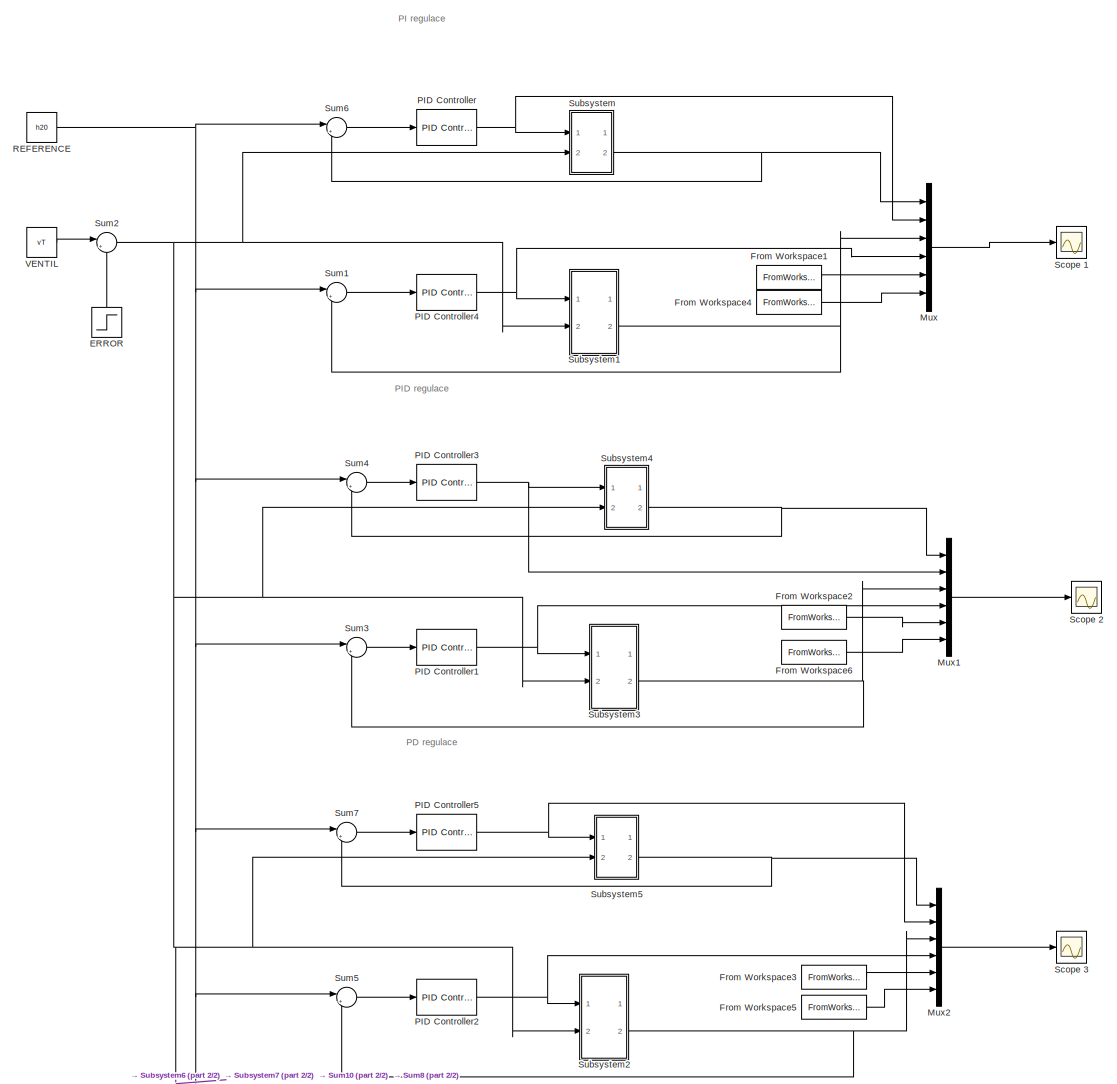
[diagram: root canvas - part 1/2, full width, middle band]
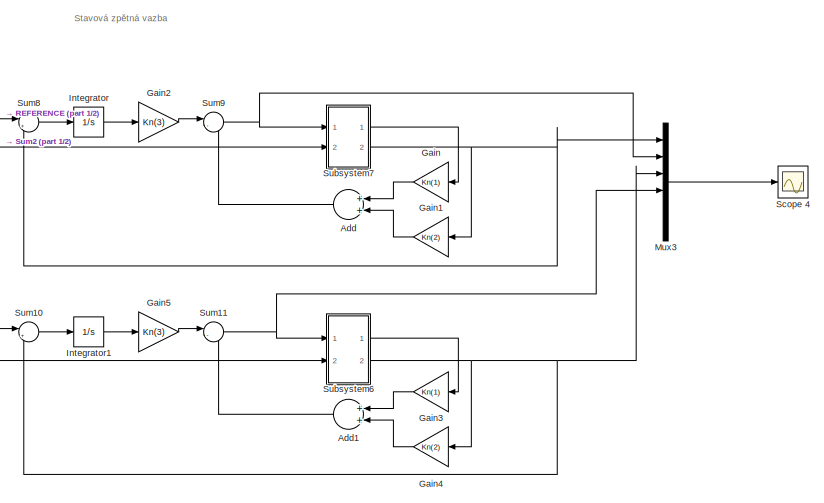
[diagram: root canvas - part 2/2, full width, bottom band]
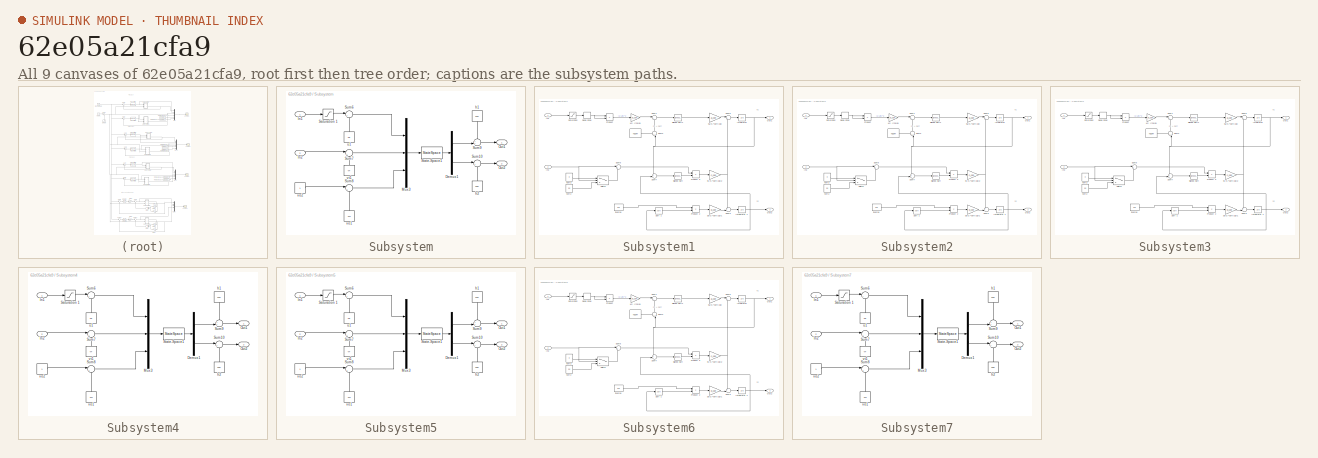
[diagram: thumbnail index - all 9 canvases of the model, root first then tree order]
MODEL slx_62e05a21cfa9
KIND model
CONFIG AbsTol = auto
CONFIG EnableMultiTasking = off
CONFIG FixedStep = auto
CONFIG MaxStep = auto
CONFIG MinStep = auto
CONFIG RelTol = 1e-3
CONFIG SampleTimeConstraint = Unconstrained
CONFIG Solver = VariableStepAuto
CONFIG SolverName = VariableStepAuto
CONFIG StartTime = 0.0
CONFIG StopTime = 250
BLOCK [Sum] Add
  InputSameDT = off
  OutDataTypeStr = Inherit: Inherit via internal rule
  Ports = [2, 1]
  SaturateOnIntegerOverflow = off
BLOCK [Sum] Add1
  InputSameDT = off
  OutDataTypeStr = Inherit: Inherit via internal rule
  Ports = [2, 1]
  SaturateOnIntegerOverflow = off
BLOCK [Step] ERROR
  After = 0.2
  SampleTime = 0
  Time = 150
  ZeroCross = off
BLOCK [FromWorkspace] From Workspace1
  SampleTime = 0
  VariableName = h2_real_PI
  ZeroCross = on
BLOCK [FromWorkspace] From Workspace2
  SampleTime = 0
  VariableName = h2_real_PID
  ZeroCross = on
BLOCK [FromWorkspace] From Workspace3
  SampleTime = 0
  VariableName = h2_real_PD
  ZeroCross = on
BLOCK [FromWorkspace] From Workspace4
  SampleTime = 0
  VariableName = u_real_PI
  ZeroCross = on
BLOCK [FromWorkspace] From Workspace5
  SampleTime = 0
  VariableName = u_real_PD
  ZeroCross = on
BLOCK [FromWorkspace] From Workspace6
  SampleTime = 0
  VariableName = u_real_PID
  ZeroCross = on
BLOCK [Gain] Gain
  Gain = Kn(1)
  OutDataTypeStr = Inherit: Inherit via internal rule
  ParamDataTypeStr = Inherit: Inherit via internal rule
  SaturateOnIntegerOverflow = off
BLOCK [Gain] Gain1
  Gain = Kn(2)
  OutDataTypeStr = Inherit: Inherit via internal rule
  ParamDataTypeStr = Inherit: Inherit via internal rule
  SaturateOnIntegerOverflow = off
BLOCK [Gain] Gain2
  Gain = Kn(3)
  OutDataTypeStr = Inherit: Inherit via internal rule
  ParamDataTypeStr = Inherit: Inherit via internal rule
  SaturateOnIntegerOverflow = off
BLOCK [Gain] Gain3
  Gain = Kn(1)
  OutDataTypeStr = Inherit: Inherit via internal rule
  ParamDataTypeStr = Inherit: Inherit via internal rule
  SaturateOnIntegerOverflow = off
BLOCK [Gain] Gain4
  Gain = Kn(2)
  OutDataTypeStr = Inherit: Inherit via internal rule
  ParamDataTypeStr = Inherit: Inherit via internal rule
  SaturateOnIntegerOverflow = off
BLOCK [Gain] Gain5
  Gain = Kn(3)
  OutDataTypeStr = Inherit: Inherit via internal rule
  ParamDataTypeStr = Inherit: Inherit via internal rule
  SaturateOnIntegerOverflow = off
BLOCK [Integrator] Integrator
  Ports = [1, 1]
BLOCK [Integrator] Integrator1
  Ports = [1, 1]
BLOCK [Mux] Mux
  DisplayOption = bar
  Inputs = 6
  Ports = [6, 1]
BLOCK [Mux] Mux1
  DisplayOption = bar
  Inputs = 6
  Ports = [6, 1]
BLOCK [Mux] Mux2
  DisplayOption = bar
  Inputs = 6
  Ports = [6, 1]
BLOCK [Mux] Mux3
  DisplayOption = bar
  Inputs = 6
  Ports = [6, 1]
BLOCK [Reference] PID Controller  REF=simulink/Continuous/PID Controller
  Ports = [1, 1]
  SourceBlock = simulink/Continuous/PID Controller
  SourceProductBaseCode = SL
  SourceProductName = Simulink
  SourceType = PID 1dof
BLOCK [Reference] PID Controller1  REF=simulink/Continuous/PID Controller
  Ports = [1, 1]
  SourceBlock = simulink/Continuous/PID Controller
  SourceProductBaseCode = SL
  SourceProductName = Simulink
  SourceType = PID 1dof
BLOCK [Reference] PID Controller2  REF=simulink/Continuous/PID Controller
  Ports = [1, 1]
  SourceBlock = simulink/Continuous/PID Controller
  SourceProductBaseCode = SL
  SourceProductName = Simulink
  SourceType = PID 1dof
BLOCK [Reference] PID Controller3  REF=simulink/Continuous/PID Controller
  Ports = [1, 1]
  SourceBlock = simulink/Continuous/PID Controller
  SourceProductBaseCode = SL
  SourceProductName = Simulink
  SourceType = PID 1dof
BLOCK [Reference] PID Controller4  REF=simulink/Continuous/PID Controller
  Ports = [1, 1]
  SourceBlock = simulink/Continuous/PID Controller
  SourceProductBaseCode = SL
  SourceProductName = Simulink
  SourceType = PID 1dof
BLOCK [Reference] PID Controller5  REF=simulink/Continuous/PID Controller
  Ports = [1, 1]
  SourceBlock = simulink/Continuous/PID Controller
  SourceProductBaseCode = SL
  SourceProductName = Simulink
  SourceType = PID 1dof
BLOCK [Constant] REFERENCE
  Value = h20
BLOCK [Scope] Scope 1
  NumInputPorts = 1
  Ports = [1]
  ScopeSpecificationString = Simulink.scopes.TimeScopeBlockCfg('CurrentConfiguration', extmgr.ConfigurationSet(extmgr.Configuration('Core','General UI',true),extmgr.Configuration('Core','Source UI',true),extmgr.Configuration('Sources','WiredSimulink',true,'DataLogging',true,'DataLoggingSaveFormat','Array','SampleTime','0.1222'),extmgr.Configuration('Visuals','Time Domain',true,'SerializedDisplays',{struct('MinYLimReal','-0.07...<+1562ch>
BLOCK [Scope] Scope 2
  NumInputPorts = 1
  Ports = [1]
  ScopeSpecificationString = Simulink.scopes.TimeScopeBlockCfg('CurrentConfiguration', extmgr.ConfigurationSet(extmgr.Configuration('Core','General UI',true),extmgr.Configuration('Core','Source UI',true),extmgr.Configuration('Sources','WiredSimulink',true,'DataLogging',true,'DataLoggingSaveFormat','Array','SampleTime','0.1222','DataLoggingVariableName','ScopeData1'),extmgr.Configuration('Visuals','Time Domain',true,'Serialize...<+1602ch>
BLOCK [Scope] Scope 3
  NumInputPorts = 1
  Ports = [1]
  ScopeSpecificationString = Simulink.scopes.TimeScopeBlockCfg('CurrentConfiguration', extmgr.ConfigurationSet(extmgr.Configuration('Core','General UI',true),extmgr.Configuration('Core','Source UI',true),extmgr.Configuration('Sources','WiredSimulink',true,'DataLogging',true,'DataLoggingSaveFormat','Array','SampleTime','0.1222','DataLoggingVariableName','ScopeData2'),extmgr.Configuration('Visuals','Time Domain',true,'Serialize...<+1579ch>
BLOCK [Scope] Scope 4
  NumInputPorts = 1
  Ports = [1]
  ScopeSpecificationString = Simulink.scopes.TimeScopeBlockCfg('CurrentConfiguration', extmgr.ConfigurationSet(extmgr.Configuration('Core','General UI',true),extmgr.Configuration('Core','Source UI',true),extmgr.Configuration('Sources','WiredSimulink',true,'DataLogging',true,'DataLoggingSaveFormat','Array','SampleTime','0.1222','DataLoggingVariableName','ScopeData3'),extmgr.Configuration('Visuals','Time Domain',true,'Serialize...<+1596ch>
BLOCK [SubSystem] Subsystem
  Ports = [2, 2]
  RequestExecContextInheritance = off
  Variant = off
BLOCK [Demux] Subsystem/Demux1
  DisplayOption = bar
  Outputs = 2
  Ports = [1, 2]
BLOCK [Inport] Subsystem/In1
  IconDisplay = Port number
BLOCK [Inport] Subsystem/In2
  IconDisplay = Port number
  Port = 2
BLOCK [Mux] Subsystem/Mux3
  DisplayOption = bar
  Inputs = 3
  Ports = [3, 1]
BLOCK [Outport] Subsystem/Out1
  IconDisplay = Port number
BLOCK [Outport] Subsystem/Out2
  IconDisplay = Port number
  Port = 2
BLOCK [Saturate] Subsystem/Saturation 1
  InputPortMap = u0
  Ports = [1, 1]
  UpperLimit = 1
BLOCK [StateSpace] Subsystem/State-Space1
  A = A
  B = B
  C = C
  D = D
  InitialCondition = 0
  Ports = [1, 1]
BLOCK [Sum] Subsystem/Sum10
  IconShape = round
  InputSameDT = off
  Inputs = |++
  OutDataTypeStr = Inherit: Inherit via internal rule
  Ports = [2, 1]
  SaturateOnIntegerOverflow = off
BLOCK [Sum] Subsystem/Sum6
  IconShape = round
  InputSameDT = off
  Inputs = |+-
  OutDataTypeStr = Inherit: Inherit via internal rule
  Ports = [2, 1]
  SaturateOnIntegerOverflow = off
BLOCK [Sum] Subsystem/Sum7
  IconShape = round
  InputSameDT = off
  Inputs = |+-
  OutDataTypeStr = Inherit: Inherit via internal rule
  Ports = [2, 1]
  SaturateOnIntegerOverflow = off
BLOCK [Sum] Subsystem/Sum8
  IconShape = round
  InputSameDT = off
  Inputs = |+-
  OutDataTypeStr = Inherit: Inherit via internal rule
  Ports = [2, 1]
  SaturateOnIntegerOverflow = off
BLOCK [Sum] Subsystem/Sum9
  IconShape = round
  InputSameDT = off
  Inputs = ++|
  OutDataTypeStr = Inherit: Inherit via internal rule
  Ports = [2, 1]
  SaturateOnIntegerOverflow = off
BLOCK [Constant] Subsystem/h1
  Value = h10
BLOCK [Constant] Subsystem/h2
  Value = h20
BLOCK [Constant] Subsystem/u1
  Value = u0
BLOCK [Constant] Subsystem/vo1
  Value = vO
BLOCK [Constant] Subsystem/vo2
BLOCK [Constant] Subsystem/vt1
  Value = vT
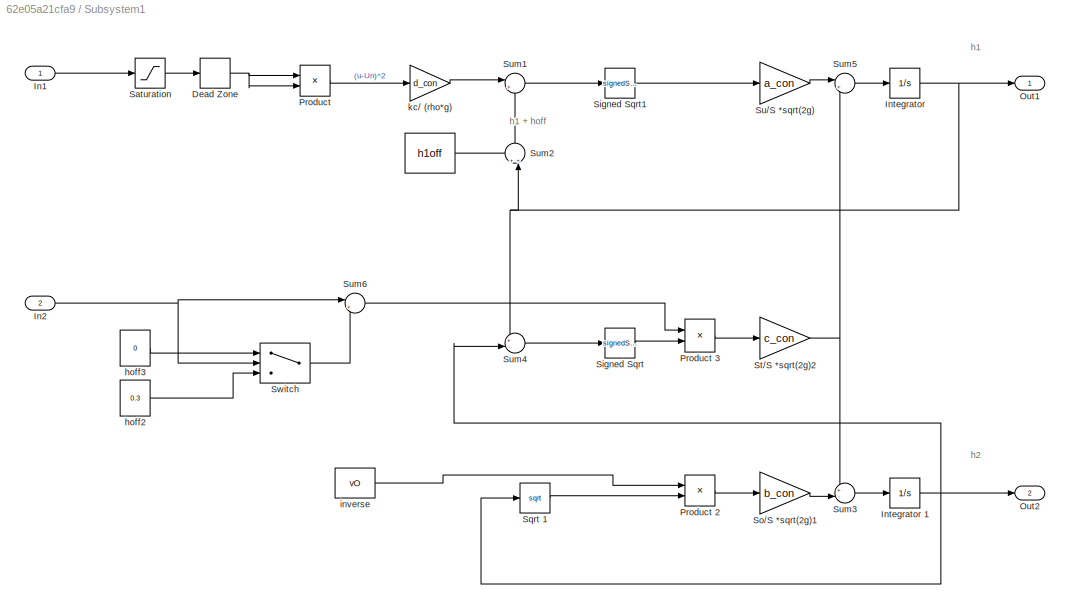
BLOCK [SubSystem] Subsystem1
  Ports = [2, 2]
  RequestExecContextInheritance = off
  Variant = off
BLOCK [Constant] Subsystem1/ 
  Value = h1off
BLOCK [Constant] Subsystem1/ hoff2
  Value = 0.3
BLOCK [Constant] Subsystem1/ hoff3
  Value = 0
BLOCK [Constant] Subsystem1/ inverse
  Value = vO
BLOCK [DeadZone] Subsystem1/Dead Zone 
  LowerValue = 0
  UpperValue = 0.05
BLOCK [Inport] Subsystem1/In1
  IconDisplay = Port number
BLOCK [Inport] Subsystem1/In2
  IconDisplay = Port number
  Port = 2
BLOCK [Integrator] Subsystem1/Integrator 
  InitialCondition = -0.045
  LimitOutput = on
  LowerSaturationLimit = -0.045
  Ports = [1, 1]
  UpperSaturationLimit = 0.71
BLOCK [Integrator] Subsystem1/Integrator 1
  LimitOutput = on
  LowerSaturationLimit = 0
  Ports = [1, 1]
  UpperSaturationLimit = 0.71
BLOCK [Outport] Subsystem1/Out1
  IconDisplay = Port number
BLOCK [Outport] Subsystem1/Out2
  IconDisplay = Port number
  Port = 2
BLOCK [Product] Subsystem1/Product 
  InputSameDT = off
  OutDataTypeStr = Inherit: Inherit via internal rule
  Ports = [2, 1]
  RndMeth = Floor
  SaturateOnIntegerOverflow = off
BLOCK [Product] Subsystem1/Product 2
  InputSameDT = off
  OutDataTypeStr = Inherit: Inherit via internal rule
  Ports = [2, 1]
  RndMeth = Floor
  SaturateOnIntegerOverflow = off
BLOCK [Product] Subsystem1/Product 3
  InputSameDT = off
  OutDataTypeStr = Inherit: Inherit via internal rule
  Ports = [2, 1]
  RndMeth = Floor
  SaturateOnIntegerOverflow = off
BLOCK [Saturate] Subsystem1/Saturation 
  InputPortMap = u0
  Ports = [1, 1]
  UpperLimit = 1
BLOCK [Sqrt] Subsystem1/Signed Sqrt
  Operator = signedSqrt
BLOCK [Sqrt] Subsystem1/Signed Sqrt1
  Operator = signedSqrt
BLOCK [Gain] Subsystem1/So//S *sqrt(2g)1
  Gain = b_con
  OutDataTypeStr = Inherit: Inherit via internal rule
  ParamDataTypeStr = Inherit: Inherit via internal rule
  SaturateOnIntegerOverflow = off
BLOCK [Sqrt] Subsystem1/Sqrt 1
BLOCK [Gain] Subsystem1/St//S *sqrt(2g)2
  Gain = c_con
  OutDataTypeStr = Inherit: Inherit via internal rule
  ParamDataTypeStr = Inherit: Inherit via internal rule
  SaturateOnIntegerOverflow = off
BLOCK [Gain] Subsystem1/Su//S *sqrt(2g)
  Gain = a_con
  OutDataTypeStr = Inherit: Inherit via internal rule
  ParamDataTypeStr = Inherit: Inherit via internal rule
  SaturateOnIntegerOverflow = off
BLOCK [Sum] Subsystem1/Sum1
  IconShape = round
  InputSameDT = off
  Inputs = |+-
  OutDataTypeStr = Inherit: Inherit via internal rule
  Ports = [2, 1]
  SaturateOnIntegerOverflow = off
BLOCK [Sum] Subsystem1/Sum2
  IconShape = round
  InputSameDT = off
  Inputs = ++|
  OutDataTypeStr = Inherit: Inherit via internal rule
  Ports = [2, 1]
  SaturateOnIntegerOverflow = off
BLOCK [Sum] Subsystem1/Sum3
  IconShape = round
  InputSameDT = off
  Inputs = +-|
  OutDataTypeStr = Inherit: Inherit via internal rule
  Ports = [2, 1]
  SaturateOnIntegerOverflow = off
BLOCK [Sum] Subsystem1/Sum4
  IconShape = round
  InputSameDT = off
  Inputs = +-|
  OutDataTypeStr = Inherit: Inherit via internal rule
  Ports = [2, 1]
  SaturateOnIntegerOverflow = off
BLOCK [Sum] Subsystem1/Sum5
  IconShape = round
  InputSameDT = off
  Inputs = |+-
  OutDataTypeStr = Inherit: Inherit via internal rule
  Ports = [2, 1]
  SaturateOnIntegerOverflow = off
BLOCK [Sum] Subsystem1/Sum6
  IconShape = round
  InputSameDT = off
  Inputs = |++
  OutDataTypeStr = Inherit: Inherit via internal rule
  Ports = [2, 1]
  SaturateOnIntegerOverflow = off
BLOCK [Switch] Subsystem1/Switch
  Criteria = u2 > Threshold
  InputSameDT = off
  SaturateOnIntegerOverflow = off
  Threshold = 0.5
BLOCK [Gain] Subsystem1/kc// (rho*g)
  Gain = d_con
  OutDataTypeStr = Inherit: Inherit via internal rule
  ParamDataTypeStr = Inherit: Inherit via internal rule
  SaturateOnIntegerOverflow = off
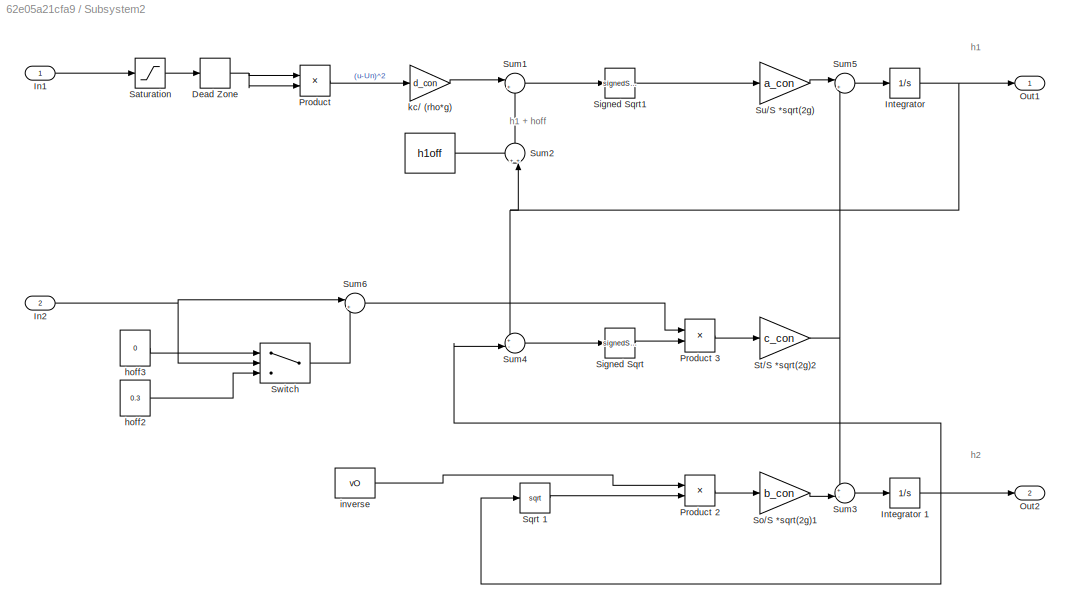
BLOCK [SubSystem] Subsystem2
  Ports = [2, 2]
  RequestExecContextInheritance = off
  Variant = off
BLOCK [Constant] Subsystem2/ 
  Value = h1off
BLOCK [Constant] Subsystem2/ hoff2
  Value = 0.3
BLOCK [Constant] Subsystem2/ hoff3
  Value = 0
BLOCK [Constant] Subsystem2/ inverse
  Value = vO
BLOCK [DeadZone] Subsystem2/Dead Zone 
  LowerValue = 0
  UpperValue = 0.05
BLOCK [Inport] Subsystem2/In1
  IconDisplay = Port number
BLOCK [Inport] Subsystem2/In2
  IconDisplay = Port number
  Port = 2
BLOCK [Integrator] Subsystem2/Integrator 
  InitialCondition = -0.045
  LimitOutput = on
  LowerSaturationLimit = -0.045
  Ports = [1, 1]
  UpperSaturationLimit = 0.71
BLOCK [Integrator] Subsystem2/Integrator 1
  LimitOutput = on
  LowerSaturationLimit = 0
  Ports = [1, 1]
  UpperSaturationLimit = 0.71
BLOCK [Outport] Subsystem2/Out1
  IconDisplay = Port number
BLOCK [Outport] Subsystem2/Out2
  IconDisplay = Port number
  Port = 2
BLOCK [Product] Subsystem2/Product 
  InputSameDT = off
  OutDataTypeStr = Inherit: Inherit via internal rule
  Ports = [2, 1]
  RndMeth = Floor
  SaturateOnIntegerOverflow = off
BLOCK [Product] Subsystem2/Product 2
  InputSameDT = off
  OutDataTypeStr = Inherit: Inherit via internal rule
  Ports = [2, 1]
  RndMeth = Floor
  SaturateOnIntegerOverflow = off
BLOCK [Product] Subsystem2/Product 3
  InputSameDT = off
  OutDataTypeStr = Inherit: Inherit via internal rule
  Ports = [2, 1]
  RndMeth = Floor
  SaturateOnIntegerOverflow = off
BLOCK [Saturate] Subsystem2/Saturation 
  InputPortMap = u0
  Ports = [1, 1]
  UpperLimit = 1
BLOCK [Sqrt] Subsystem2/Signed Sqrt
  Operator = signedSqrt
BLOCK [Sqrt] Subsystem2/Signed Sqrt1
  Operator = signedSqrt
BLOCK [Gain] Subsystem2/So//S *sqrt(2g)1
  Gain = b_con
  OutDataTypeStr = Inherit: Inherit via internal rule
  ParamDataTypeStr = Inherit: Inherit via internal rule
  SaturateOnIntegerOverflow = off
BLOCK [Sqrt] Subsystem2/Sqrt 1
BLOCK [Gain] Subsystem2/St//S *sqrt(2g)2
  Gain = c_con
  OutDataTypeStr = Inherit: Inherit via internal rule
  ParamDataTypeStr = Inherit: Inherit via internal rule
  SaturateOnIntegerOverflow = off
BLOCK [Gain] Subsystem2/Su//S *sqrt(2g)
  Gain = a_con
  OutDataTypeStr = Inherit: Inherit via internal rule
  ParamDataTypeStr = Inherit: Inherit via internal rule
  SaturateOnIntegerOverflow = off
BLOCK [Sum] Subsystem2/Sum1
  IconShape = round
  InputSameDT = off
  Inputs = |+-
  OutDataTypeStr = Inherit: Inherit via internal rule
  Ports = [2, 1]
  SaturateOnIntegerOverflow = off
BLOCK [Sum] Subsystem2/Sum2
  IconShape = round
  InputSameDT = off
  Inputs = ++|
  OutDataTypeStr = Inherit: Inherit via internal rule
  Ports = [2, 1]
  SaturateOnIntegerOverflow = off
BLOCK [Sum] Subsystem2/Sum3
  IconShape = round
  InputSameDT = off
  Inputs = +-|
  OutDataTypeStr = Inherit: Inherit via internal rule
  Ports = [2, 1]
  SaturateOnIntegerOverflow = off
BLOCK [Sum] Subsystem2/Sum4
  IconShape = round
  InputSameDT = off
  Inputs = +-|
  OutDataTypeStr = Inherit: Inherit via internal rule
  Ports = [2, 1]
  SaturateOnIntegerOverflow = off
BLOCK [Sum] Subsystem2/Sum5
  IconShape = round
  InputSameDT = off
  Inputs = |+-
  OutDataTypeStr = Inherit: Inherit via internal rule
  Ports = [2, 1]
  SaturateOnIntegerOverflow = off
BLOCK [Sum] Subsystem2/Sum6
  IconShape = round
  InputSameDT = off
  Inputs = |++
  OutDataTypeStr = Inherit: Inherit via internal rule
  Ports = [2, 1]
  SaturateOnIntegerOverflow = off
BLOCK [Switch] Subsystem2/Switch
  Criteria = u2 > Threshold
  InputSameDT = off
  SaturateOnIntegerOverflow = off
  Threshold = 0.5
BLOCK [Gain] Subsystem2/kc// (rho*g)
  Gain = d_con
  OutDataTypeStr = Inherit: Inherit via internal rule
  ParamDataTypeStr = Inherit: Inherit via internal rule
  SaturateOnIntegerOverflow = off
BLOCK [SubSystem] Subsystem3
  Ports = [2, 2]
  RequestExecContextInheritance = off
  Variant = off
BLOCK [Constant] Subsystem3/ 
  Value = h1off
BLOCK [Constant] Subsystem3/ hoff2
  Value = 0.3
BLOCK [Constant] Subsystem3/ hoff3
  Value = 0
BLOCK [Constant] Subsystem3/ inverse
  Value = vO
BLOCK [DeadZone] Subsystem3/Dead Zone 
  LowerValue = 0
  UpperValue = 0.05
BLOCK [Inport] Subsystem3/In1
  IconDisplay = Port number
BLOCK [Inport] Subsystem3/In2
  IconDisplay = Port number
  Port = 2
BLOCK [Integrator] Subsystem3/Integrator 
  InitialCondition = -0.045
  LimitOutput = on
  LowerSaturationLimit = -0.045
  Ports = [1, 1]
  UpperSaturationLimit = 0.71
BLOCK [Integrator] Subsystem3/Integrator 1
  LimitOutput = on
  LowerSaturationLimit = 0
  Ports = [1, 1]
  UpperSaturationLimit = 0.71
BLOCK [Outport] Subsystem3/Out1
  IconDisplay = Port number
BLOCK [Outport] Subsystem3/Out2
  IconDisplay = Port number
  Port = 2
BLOCK [Product] Subsystem3/Product 
  InputSameDT = off
  OutDataTypeStr = Inherit: Inherit via internal rule
  Ports = [2, 1]
  RndMeth = Floor
  SaturateOnIntegerOverflow = off
BLOCK [Product] Subsystem3/Product 2
  InputSameDT = off
  OutDataTypeStr = Inherit: Inherit via internal rule
  Ports = [2, 1]
  RndMeth = Floor
  SaturateOnIntegerOverflow = off
BLOCK [Product] Subsystem3/Product 3
  InputSameDT = off
  OutDataTypeStr = Inherit: Inherit via internal rule
  Ports = [2, 1]
  RndMeth = Floor
  SaturateOnIntegerOverflow = off
BLOCK [Saturate] Subsystem3/Saturation 
  InputPortMap = u0
  Ports = [1, 1]
  UpperLimit = 1
BLOCK [Sqrt] Subsystem3/Signed Sqrt
  Operator = signedSqrt
BLOCK [Sqrt] Subsystem3/Signed Sqrt1
  Operator = signedSqrt
BLOCK [Gain] Subsystem3/So//S *sqrt(2g)1
  Gain = b_con
  OutDataTypeStr = Inherit: Inherit via internal rule
  ParamDataTypeStr = Inherit: Inherit via internal rule
  SaturateOnIntegerOverflow = off
BLOCK [Sqrt] Subsystem3/Sqrt 1
BLOCK [Gain] Subsystem3/St//S *sqrt(2g)2
  Gain = c_con
  OutDataTypeStr = Inherit: Inherit via internal rule
  ParamDataTypeStr = Inherit: Inherit via internal rule
  SaturateOnIntegerOverflow = off
BLOCK [Gain] Subsystem3/Su//S *sqrt(2g)
  Gain = a_con
  OutDataTypeStr = Inherit: Inherit via internal rule
  ParamDataTypeStr = Inherit: Inherit via internal rule
  SaturateOnIntegerOverflow = off
BLOCK [Sum] Subsystem3/Sum1
  IconShape = round
  InputSameDT = off
  Inputs = |+-
  OutDataTypeStr = Inherit: Inherit via internal rule
  Ports = [2, 1]
  SaturateOnIntegerOverflow = off
BLOCK [Sum] Subsystem3/Sum2
  IconShape = round
  InputSameDT = off
  Inputs = ++|
  OutDataTypeStr = Inherit: Inherit via internal rule
  Ports = [2, 1]
  SaturateOnIntegerOverflow = off
BLOCK [Sum] Subsystem3/Sum3
  IconShape = round
  InputSameDT = off
  Inputs = +-|
  OutDataTypeStr = Inherit: Inherit via internal rule
  Ports = [2, 1]
  SaturateOnIntegerOverflow = off
BLOCK [Sum] Subsystem3/Sum4
  IconShape = round
  InputSameDT = off
  Inputs = +-|
  OutDataTypeStr = Inherit: Inherit via internal rule
  Ports = [2, 1]
  SaturateOnIntegerOverflow = off
BLOCK [Sum] Subsystem3/Sum5
  IconShape = round
  InputSameDT = off
  Inputs = |+-
  OutDataTypeStr = Inherit: Inherit via internal rule
  Ports = [2, 1]
  SaturateOnIntegerOverflow = off
BLOCK [Sum] Subsystem3/Sum6
  IconShape = round
  InputSameDT = off
  Inputs = |++
  OutDataTypeStr = Inherit: Inherit via internal rule
  Ports = [2, 1]
  SaturateOnIntegerOverflow = off
BLOCK [Switch] Subsystem3/Switch
  Criteria = u2 > Threshold
  InputSameDT = off
  SaturateOnIntegerOverflow = off
  Threshold = 0.5
BLOCK [Gain] Subsystem3/kc// (rho*g)
  Gain = d_con
  OutDataTypeStr = Inherit: Inherit via internal rule
  ParamDataTypeStr = Inherit: Inherit via internal rule
  SaturateOnIntegerOverflow = off
BLOCK [SubSystem] Subsystem4
  Ports = [2, 2]
  RequestExecContextInheritance = off
  Variant = off
BLOCK [Demux] Subsystem4/Demux1
  DisplayOption = bar
  Outputs = 2
  Ports = [1, 2]
BLOCK [Inport] Subsystem4/In1
  IconDisplay = Port number
BLOCK [Inport] Subsystem4/In2
  IconDisplay = Port number
  Port = 2
BLOCK [Mux] Subsystem4/Mux3
  DisplayOption = bar
  Inputs = 3
  Ports = [3, 1]
BLOCK [Outport] Subsystem4/Out1
  IconDisplay = Port number
BLOCK [Outport] Subsystem4/Out2
  IconDisplay = Port number
  Port = 2
BLOCK [Saturate] Subsystem4/Saturation 1
  InputPortMap = u0
  Ports = [1, 1]
  UpperLimit = 1
BLOCK [StateSpace] Subsystem4/State-Space1
  A = A
  B = B
  C = C
  D = D
  InitialCondition = 0
  Ports = [1, 1]
BLOCK [Sum] Subsystem4/Sum10
  IconShape = round
  InputSameDT = off
  Inputs = |++
  OutDataTypeStr = Inherit: Inherit via internal rule
  Ports = [2, 1]
  SaturateOnIntegerOverflow = off
BLOCK [Sum] Subsystem4/Sum6
  IconShape = round
  InputSameDT = off
  Inputs = |+-
  OutDataTypeStr = Inherit: Inherit via internal rule
  Ports = [2, 1]
  SaturateOnIntegerOverflow = off
BLOCK [Sum] Subsystem4/Sum7
  IconShape = round
  InputSameDT = off
  Inputs = |+-
  OutDataTypeStr = Inherit: Inherit via internal rule
  Ports = [2, 1]
  SaturateOnIntegerOverflow = off
BLOCK [Sum] Subsystem4/Sum8
  IconShape = round
  InputSameDT = off
  Inputs = |+-
  OutDataTypeStr = Inherit: Inherit via internal rule
  Ports = [2, 1]
  SaturateOnIntegerOverflow = off
BLOCK [Sum] Subsystem4/Sum9
  IconShape = round
  InputSameDT = off
  Inputs = ++|
  OutDataTypeStr = Inherit: Inherit via internal rule
  Ports = [2, 1]
  SaturateOnIntegerOverflow = off
BLOCK [Constant] Subsystem4/h1
  Value = h10
BLOCK [Constant] Subsystem4/h2
  Value = h20
BLOCK [Constant] Subsystem4/u1
  Value = u0
BLOCK [Constant] Subsystem4/vo1
  Value = vO
BLOCK [Constant] Subsystem4/vo2
BLOCK [Constant] Subsystem4/vt1
  Value = vT
BLOCK [SubSystem] Subsystem5
  Ports = [2, 2]
  RequestExecContextInheritance = off
  Variant = off
BLOCK [Demux] Subsystem5/Demux1
  DisplayOption = bar
  Outputs = 2
  Ports = [1, 2]
BLOCK [Inport] Subsystem5/In1
  IconDisplay = Port number
BLOCK [Inport] Subsystem5/In2
  IconDisplay = Port number
  Port = 2
BLOCK [Mux] Subsystem5/Mux3
  DisplayOption = bar
  Inputs = 3
  Ports = [3, 1]
BLOCK [Outport] Subsystem5/Out1
  IconDisplay = Port number
BLOCK [Outport] Subsystem5/Out2
  IconDisplay = Port number
  Port = 2
BLOCK [Saturate] Subsystem5/Saturation 1
  InputPortMap = u0
  Ports = [1, 1]
  UpperLimit = 1
BLOCK [StateSpace] Subsystem5/State-Space1
  A = A
  B = B
  C = C
  D = D
  InitialCondition = 0
  Ports = [1, 1]
BLOCK [Sum] Subsystem5/Sum10
  IconShape = round
  InputSameDT = off
  Inputs = |++
  OutDataTypeStr = Inherit: Inherit via internal rule
  Ports = [2, 1]
  SaturateOnIntegerOverflow = off
BLOCK [Sum] Subsystem5/Sum6
  IconShape = round
  InputSameDT = off
  Inputs = |+-
  OutDataTypeStr = Inherit: Inherit via internal rule
  Ports = [2, 1]
  SaturateOnIntegerOverflow = off
BLOCK [Sum] Subsystem5/Sum7
  IconShape = round
  InputSameDT = off
  Inputs = |+-
  OutDataTypeStr = Inherit: Inherit via internal rule
  Ports = [2, 1]
  SaturateOnIntegerOverflow = off
BLOCK [Sum] Subsystem5/Sum8
  IconShape = round
  InputSameDT = off
  Inputs = |+-
  OutDataTypeStr = Inherit: Inherit via internal rule
  Ports = [2, 1]
  SaturateOnIntegerOverflow = off
BLOCK [Sum] Subsystem5/Sum9
  IconShape = round
  InputSameDT = off
  Inputs = ++|
  OutDataTypeStr = Inherit: Inherit via internal rule
  Ports = [2, 1]
  SaturateOnIntegerOverflow = off
BLOCK [Constant] Subsystem5/h1
  Value = h10
BLOCK [Constant] Subsystem5/h2
  Value = h20
BLOCK [Constant] Subsystem5/u1
  Value = u0
BLOCK [Constant] Subsystem5/vo1
  Value = vO
BLOCK [Constant] Subsystem5/vo2
BLOCK [Constant] Subsystem5/vt1
  Value = vT
BLOCK [SubSystem] Subsystem6
  Ports = [2, 2]
  RequestExecContextInheritance = off
  Variant = off
BLOCK [Constant] Subsystem6/ 
  Value = h1off
BLOCK [Constant] Subsystem6/ hoff2
  Value = 0.3
BLOCK [Constant] Subsystem6/ hoff3
  Value = 0
BLOCK [Constant] Subsystem6/ inverse
  Value = vO
BLOCK [DeadZone] Subsystem6/Dead Zone 
  LowerValue = 0
  UpperValue = 0.05
BLOCK [Inport] Subsystem6/In1
  IconDisplay = Port number
BLOCK [Inport] Subsystem6/In2
  IconDisplay = Port number
  Port = 2
BLOCK [Integrator] Subsystem6/Integrator 
  InitialCondition = -0.045
  LimitOutput = on
  LowerSaturationLimit = -0.045
  Ports = [1, 1]
  UpperSaturationLimit = 0.71
BLOCK [Integrator] Subsystem6/Integrator 1
  LimitOutput = on
  LowerSaturationLimit = 0
  Ports = [1, 1]
  UpperSaturationLimit = 0.71
BLOCK [Outport] Subsystem6/Out1
  IconDisplay = Port number
BLOCK [Outport] Subsystem6/Out2
  IconDisplay = Port number
  Port = 2
BLOCK [Product] Subsystem6/Product 
  InputSameDT = off
  OutDataTypeStr = Inherit: Inherit via internal rule
  Ports = [2, 1]
  RndMeth = Floor
  SaturateOnIntegerOverflow = off
BLOCK [Product] Subsystem6/Product 2
  InputSameDT = off
  OutDataTypeStr = Inherit: Inherit via internal rule
  Ports = [2, 1]
  RndMeth = Floor
  SaturateOnIntegerOverflow = off
BLOCK [Product] Subsystem6/Product 3
  InputSameDT = off
  OutDataTypeStr = Inherit: Inherit via internal rule
  Ports = [2, 1]
  RndMeth = Floor
  SaturateOnIntegerOverflow = off
BLOCK [Saturate] Subsystem6/Saturation 
  InputPortMap = u0
  Ports = [1, 1]
  UpperLimit = 1
BLOCK [Sqrt] Subsystem6/Signed Sqrt
  Operator = signedSqrt
BLOCK [Sqrt] Subsystem6/Signed Sqrt1
  Operator = signedSqrt
BLOCK [Gain] Subsystem6/So//S *sqrt(2g)1
  Gain = b_con
  OutDataTypeStr = Inherit: Inherit via internal rule
  ParamDataTypeStr = Inherit: Inherit via internal rule
  SaturateOnIntegerOverflow = off
BLOCK [Sqrt] Subsystem6/Sqrt 1
BLOCK [Gain] Subsystem6/St//S *sqrt(2g)2
  Gain = c_con
  OutDataTypeStr = Inherit: Inherit via internal rule
  ParamDataTypeStr = Inherit: Inherit via internal rule
  SaturateOnIntegerOverflow = off
BLOCK [Gain] Subsystem6/Su//S *sqrt(2g)
  Gain = a_con
  OutDataTypeStr = Inherit: Inherit via internal rule
  ParamDataTypeStr = Inherit: Inherit via internal rule
  SaturateOnIntegerOverflow = off
BLOCK [Sum] Subsystem6/Sum1
  IconShape = round
  InputSameDT = off
  Inputs = |+-
  OutDataTypeStr = Inherit: Inherit via internal rule
  Ports = [2, 1]
  SaturateOnIntegerOverflow = off
BLOCK [Sum] Subsystem6/Sum2
  IconShape = round
  InputSameDT = off
  Inputs = ++|
  OutDataTypeStr = Inherit: Inherit via internal rule
  Ports = [2, 1]
  SaturateOnIntegerOverflow = off
BLOCK [Sum] Subsystem6/Sum3
  IconShape = round
  InputSameDT = off
  Inputs = +-|
  OutDataTypeStr = Inherit: Inherit via internal rule
  Ports = [2, 1]
  SaturateOnIntegerOverflow = off
BLOCK [Sum] Subsystem6/Sum4
  IconShape = round
  InputSameDT = off
  Inputs = +-|
  OutDataTypeStr = Inherit: Inherit via internal rule
  Ports = [2, 1]
  SaturateOnIntegerOverflow = off
BLOCK [Sum] Subsystem6/Sum5
  IconShape = round
  InputSameDT = off
  Inputs = |+-
  OutDataTypeStr = Inherit: Inherit via internal rule
  Ports = [2, 1]
  SaturateOnIntegerOverflow = off
BLOCK [Sum] Subsystem6/Sum6
  IconShape = round
  InputSameDT = off
  Inputs = |++
  OutDataTypeStr = Inherit: Inherit via internal rule
  Ports = [2, 1]
  SaturateOnIntegerOverflow = off
BLOCK [Switch] Subsystem6/Switch
  Criteria = u2 > Threshold
  InputSameDT = off
  SaturateOnIntegerOverflow = off
  Threshold = 0.5
BLOCK [Gain] Subsystem6/kc// (rho*g)
  Gain = d_con
  OutDataTypeStr = Inherit: Inherit via internal rule
  ParamDataTypeStr = Inherit: Inherit via internal rule
  SaturateOnIntegerOverflow = off
BLOCK [SubSystem] Subsystem7
  Ports = [2, 2]
  RequestExecContextInheritance = off
  Variant = off
BLOCK [Demux] Subsystem7/Demux1
  DisplayOption = bar
  Outputs = 2
  Ports = [1, 2]
BLOCK [Inport] Subsystem7/In1
  IconDisplay = Port number
BLOCK [Inport] Subsystem7/In2
  IconDisplay = Port number
  Port = 2
BLOCK [Mux] Subsystem7/Mux3
  DisplayOption = bar
  Inputs = 3
  Ports = [3, 1]
BLOCK [Outport] Subsystem7/Out1
  IconDisplay = Port number
BLOCK [Outport] Subsystem7/Out2
  IconDisplay = Port number
  Port = 2
BLOCK [Saturate] Subsystem7/Saturation 1
  InputPortMap = u0
  Ports = [1, 1]
  UpperLimit = 1
BLOCK [StateSpace] Subsystem7/State-Space1
  A = A
  B = B
  C = [1 0; 0 1]
  D = D
  InitialCondition = 0
  Ports = [1, 1]
BLOCK [Sum] Subsystem7/Sum10
  IconShape = round
  InputSameDT = off
  Inputs = |++
  OutDataTypeStr = Inherit: Inherit via internal rule
  Ports = [2, 1]
  SaturateOnIntegerOverflow = off
BLOCK [Sum] Subsystem7/Sum6
  IconShape = round
  InputSameDT = off
  Inputs = |+-
  OutDataTypeStr = Inherit: Inherit via internal rule
  Ports = [2, 1]
  SaturateOnIntegerOverflow = off
BLOCK [Sum] Subsystem7/Sum7
  IconShape = round
  InputSameDT = off
  Inputs = |+-
  OutDataTypeStr = Inherit: Inherit via internal rule
  Ports = [2, 1]
  SaturateOnIntegerOverflow = off
BLOCK [Sum] Subsystem7/Sum8
  IconShape = round
  InputSameDT = off
  Inputs = |+-
  OutDataTypeStr = Inherit: Inherit via internal rule
  Ports = [2, 1]
  SaturateOnIntegerOverflow = off
BLOCK [Sum] Subsystem7/Sum9
  IconShape = round
  InputSameDT = off
  Inputs = ++|
  OutDataTypeStr = Inherit: Inherit via internal rule
  Ports = [2, 1]
  SaturateOnIntegerOverflow = off
BLOCK [Constant] Subsystem7/h1
  Value = h10
BLOCK [Constant] Subsystem7/h2
  Value = h20
BLOCK [Constant] Subsystem7/u1
  Value = u0
BLOCK [Constant] Subsystem7/vo1
  Value = vO
BLOCK [Constant] Subsystem7/vo2
BLOCK [Constant] Subsystem7/vt1
  Value = vT
BLOCK [Sum] Sum1
  IconShape = round
  InputSameDT = off
  Inputs = |+-
  OutDataTypeStr = Inherit: Inherit via internal rule
  Ports = [2, 1]
  SaturateOnIntegerOverflow = off
BLOCK [Sum] Sum10
  IconShape = round
  InputSameDT = off
  Inputs = |+-
  OutDataTypeStr = Inherit: Inherit via internal rule
  Ports = [2, 1]
  SaturateOnIntegerOverflow = off
BLOCK [Sum] Sum11
  IconShape = round
  InputSameDT = off
  Inputs = |--
  OutDataTypeStr = Inherit: Inherit via internal rule
  Ports = [2, 1]
  SaturateOnIntegerOverflow = off
BLOCK [Sum] Sum2
  IconShape = round
  InputSameDT = off
  Inputs = |+-
  OutDataTypeStr = Inherit: Inherit via internal rule
  Ports = [2, 1]
  SaturateOnIntegerOverflow = off
BLOCK [Sum] Sum3
  IconShape = round
  InputSameDT = off
  Inputs = |+-
  OutDataTypeStr = Inherit: Inherit via internal rule
  Ports = [2, 1]
  SaturateOnIntegerOverflow = off
BLOCK [Sum] Sum4
  IconShape = round
  InputSameDT = off
  Inputs = |+-
  OutDataTypeStr = Inherit: Inherit via internal rule
  Ports = [2, 1]
  SaturateOnIntegerOverflow = off
BLOCK [Sum] Sum5
  IconShape = round
  InputSameDT = off
  Inputs = |+-
  OutDataTypeStr = Inherit: Inherit via internal rule
  Ports = [2, 1]
  SaturateOnIntegerOverflow = off
BLOCK [Sum] Sum6
  IconShape = round
  InputSameDT = off
  Inputs = |+-
  OutDataTypeStr = Inherit: Inherit via internal rule
  Ports = [2, 1]
  SaturateOnIntegerOverflow = off
BLOCK [Sum] Sum7
  IconShape = round
  InputSameDT = off
  Inputs = |+-
  OutDataTypeStr = Inherit: Inherit via internal rule
  Ports = [2, 1]
  SaturateOnIntegerOverflow = off
BLOCK [Sum] Sum8
  IconShape = round
  InputSameDT = off
  Inputs = |+-
  OutDataTypeStr = Inherit: Inherit via internal rule
  Ports = [2, 1]
  SaturateOnIntegerOverflow = off
BLOCK [Sum] Sum9
  IconShape = round
  InputSameDT = off
  Inputs = |--
  OutDataTypeStr = Inherit: Inherit via internal rule
  Ports = [2, 1]
  SaturateOnIntegerOverflow = off
BLOCK [Constant] VENTIL 
  Value = vT
ANNOTATION (root): PD regulace
ANNOTATION (root): PI regulace
ANNOTATION (root): PID regulace
ANNOTATION (root): Stavová zpětná vazba
ANNOTATION Subsystem1: h1
ANNOTATION Subsystem1: h1 + hoff
ANNOTATION Subsystem1: h2
ANNOTATION Subsystem2: h1
ANNOTATION Subsystem2: h1 + hoff
ANNOTATION Subsystem2: h2
ANNOTATION Subsystem3: h1
ANNOTATION Subsystem3: h1 + hoff
ANNOTATION Subsystem3: h2
ANNOTATION Subsystem6: h1
ANNOTATION Subsystem6: h1 + hoff
ANNOTATION Subsystem6: h2
LINE Add1:1 -> Sum11:2
LINE Add:1 -> Sum9:2
LINE ERROR:1 -> Sum2:2
LINE From Workspace1:1 -> Mux:5
LINE From Workspace2:1 -> Mux1:5
LINE From Workspace3:1 -> Mux2:5
LINE From Workspace4:1 -> Mux:6
LINE From Workspace5:1 -> Mux2:6
LINE From Workspace6:1 -> Mux1:6
LINE Gain1:1 -> Add:2
LINE Gain2:1 -> Sum9:1
LINE Gain3:1 -> Add1:1
LINE Gain4:1 -> Add1:2
LINE Gain5:1 -> Sum11:1
LINE Gain:1 -> Add:1
LINE Integrator1:1 -> Gain5:1
LINE Integrator:1 -> Gain2:1
LINE Mux1:1 -> Scope 2:1
LINE Mux2:1 -> Scope 3:1
LINE Mux3:1 -> Scope 4:1
LINE Mux:1 -> Scope 1:1
NET PID Controller1:1 -> Mux1:4, Subsystem3:1
NET PID Controller2:1 -> Mux2:4, Subsystem2:1
NET PID Controller3:1 -> Mux1:2, Subsystem4:1
NET PID Controller4:1 -> Mux:4, Subsystem1:1
NET PID Controller5:1 -> Mux2:2, Subsystem5:1
NET PID Controller:1 -> Mux:2, Subsystem:1
NET REFERENCE:1 -> Sum10:1, Sum1:1, Sum3:1, Sum4:1, Sum5:1, Sum6:1, Sum7:1, Sum8:1
LINE Subsystem/Demux1:1 -> Subsystem/Sum9:2
LINE Subsystem/Demux1:2 -> Subsystem/Sum10:1
LINE Subsystem/In1:1 -> Subsystem/Saturation 1:1
LINE Subsystem/In2:1 -> Subsystem/Sum7:1
LINE Subsystem/Mux3:1 -> Subsystem/State-Space1:1
LINE Subsystem/Saturation 1:1 -> Subsystem/Sum6:1
LINE Subsystem/State-Space1:1 -> Subsystem/Demux1:1
LINE Subsystem/Sum10:1 -> Subsystem/Out2:1
LINE Subsystem/Sum6:1 -> Subsystem/Mux3:1
LINE Subsystem/Sum7:1 -> Subsystem/Mux3:2
LINE Subsystem/Sum8:1 -> Subsystem/Mux3:3
LINE Subsystem/Sum9:1 -> Subsystem/Out1:1
LINE Subsystem/h1:1 -> Subsystem/Sum9:1
LINE Subsystem/h2:1 -> Subsystem/Sum10:2
LINE Subsystem/u1:1 -> Subsystem/Sum6:2
LINE Subsystem/vo1:1 -> Subsystem/Sum8:2
LINE Subsystem/vo2:1 -> Subsystem/Sum8:1
LINE Subsystem/vt1:1 -> Subsystem/Sum7:2
LINE Subsystem1/ :1 -> Subsystem1/Sum2:1
LINE Subsystem1/ hoff2:1 -> Subsystem1/Switch:3
LINE Subsystem1/ hoff3:1 -> Subsystem1/Switch:1
LINE Subsystem1/ inverse:1 -> Subsystem1/Product 2:1
NET Subsystem1/Dead Zone :1 -> Subsystem1/Product :1, Subsystem1/Product :2
LINE Subsystem1/In1:1 -> Subsystem1/Saturation :1
NET Subsystem1/In2:1 -> Subsystem1/Sum6:1, Subsystem1/Switch:2
NET Subsystem1/Integrator 1:1 -> Subsystem1/Out2:1, Subsystem1/Sqrt 1:1, Subsystem1/Sum4:2
NET Subsystem1/Integrator :1 -> Subsystem1/Out1:1, Subsystem1/Sum2:2, Subsystem1/Sum4:1
LINE Subsystem1/Product 2:1 -> Subsystem1/So//S *sqrt(2g)1:1
LINE Subsystem1/Product 3:1 -> Subsystem1/St//S *sqrt(2g)2:1
LINE Subsystem1/Product :1 -> Subsystem1/kc// (rho*g):1
LINE Subsystem1/Saturation :1 -> Subsystem1/Dead Zone :1
LINE Subsystem1/Signed Sqrt1:1 -> Subsystem1/Su//S *sqrt(2g):1
LINE Subsystem1/Signed Sqrt:1 -> Subsystem1/Product 3:2
LINE Subsystem1/So//S *sqrt(2g)1:1 -> Subsystem1/Sum3:2
LINE Subsystem1/Sqrt 1:1 -> Subsystem1/Product 2:2
NET Subsystem1/St//S *sqrt(2g)2:1 -> Subsystem1/Sum3:1, Subsystem1/Sum5:2
LINE Subsystem1/Su//S *sqrt(2g):1 -> Subsystem1/Sum5:1
LINE Subsystem1/Sum1:1 -> Subsystem1/Signed Sqrt1:1
LINE Subsystem1/Sum2:1 -> Subsystem1/Sum1:2
LINE Subsystem1/Sum3:1 -> Subsystem1/Integrator 1:1
LINE Subsystem1/Sum4:1 -> Subsystem1/Signed Sqrt:1
LINE Subsystem1/Sum5:1 -> Subsystem1/Integrator :1
LINE Subsystem1/Sum6:1 -> Subsystem1/Product 3:1
LINE Subsystem1/Switch:1 -> Subsystem1/Sum6:2
LINE Subsystem1/kc// (rho*g):1 -> Subsystem1/Sum1:1
NET Subsystem1:2 -> Mux:3, Sum1:2
LINE Subsystem2/ :1 -> Subsystem2/Sum2:1
LINE Subsystem2/ hoff2:1 -> Subsystem2/Switch:3
LINE Subsystem2/ hoff3:1 -> Subsystem2/Switch:1
LINE Subsystem2/ inverse:1 -> Subsystem2/Product 2:1
NET Subsystem2/Dead Zone :1 -> Subsystem2/Product :1, Subsystem2/Product :2
LINE Subsystem2/In1:1 -> Subsystem2/Saturation :1
NET Subsystem2/In2:1 -> Subsystem2/Sum6:1, Subsystem2/Switch:2
NET Subsystem2/Integrator 1:1 -> Subsystem2/Out2:1, Subsystem2/Sqrt 1:1, Subsystem2/Sum4:2
NET Subsystem2/Integrator :1 -> Subsystem2/Out1:1, Subsystem2/Sum2:2, Subsystem2/Sum4:1
LINE Subsystem2/Product 2:1 -> Subsystem2/So//S *sqrt(2g)1:1
LINE Subsystem2/Product 3:1 -> Subsystem2/St//S *sqrt(2g)2:1
LINE Subsystem2/Product :1 -> Subsystem2/kc// (rho*g):1
LINE Subsystem2/Saturation :1 -> Subsystem2/Dead Zone :1
LINE Subsystem2/Signed Sqrt1:1 -> Subsystem2/Su//S *sqrt(2g):1
LINE Subsystem2/Signed Sqrt:1 -> Subsystem2/Product 3:2
LINE Subsystem2/So//S *sqrt(2g)1:1 -> Subsystem2/Sum3:2
LINE Subsystem2/Sqrt 1:1 -> Subsystem2/Product 2:2
NET Subsystem2/St//S *sqrt(2g)2:1 -> Subsystem2/Sum3:1, Subsystem2/Sum5:2
LINE Subsystem2/Su//S *sqrt(2g):1 -> Subsystem2/Sum5:1
LINE Subsystem2/Sum1:1 -> Subsystem2/Signed Sqrt1:1
LINE Subsystem2/Sum2:1 -> Subsystem2/Sum1:2
LINE Subsystem2/Sum3:1 -> Subsystem2/Integrator 1:1
LINE Subsystem2/Sum4:1 -> Subsystem2/Signed Sqrt:1
LINE Subsystem2/Sum5:1 -> Subsystem2/Integrator :1
LINE Subsystem2/Sum6:1 -> Subsystem2/Product 3:1
LINE Subsystem2/Switch:1 -> Subsystem2/Sum6:2
LINE Subsystem2/kc// (rho*g):1 -> Subsystem2/Sum1:1
NET Subsystem2:2 -> Mux2:3, Sum5:2
LINE Subsystem3/ :1 -> Subsystem3/Sum2:1
LINE Subsystem3/ hoff2:1 -> Subsystem3/Switch:3
LINE Subsystem3/ hoff3:1 -> Subsystem3/Switch:1
LINE Subsystem3/ inverse:1 -> Subsystem3/Product 2:1
NET Subsystem3/Dead Zone :1 -> Subsystem3/Product :1, Subsystem3/Product :2
LINE Subsystem3/In1:1 -> Subsystem3/Saturation :1
NET Subsystem3/In2:1 -> Subsystem3/Sum6:1, Subsystem3/Switch:2
NET Subsystem3/Integrator 1:1 -> Subsystem3/Out2:1, Subsystem3/Sqrt 1:1, Subsystem3/Sum4:2
NET Subsystem3/Integrator :1 -> Subsystem3/Out1:1, Subsystem3/Sum2:2, Subsystem3/Sum4:1
LINE Subsystem3/Product 2:1 -> Subsystem3/So//S *sqrt(2g)1:1
LINE Subsystem3/Product 3:1 -> Subsystem3/St//S *sqrt(2g)2:1
LINE Subsystem3/Product :1 -> Subsystem3/kc// (rho*g):1
LINE Subsystem3/Saturation :1 -> Subsystem3/Dead Zone :1
LINE Subsystem3/Signed Sqrt1:1 -> Subsystem3/Su//S *sqrt(2g):1
LINE Subsystem3/Signed Sqrt:1 -> Subsystem3/Product 3:2
LINE Subsystem3/So//S *sqrt(2g)1:1 -> Subsystem3/Sum3:2
LINE Subsystem3/Sqrt 1:1 -> Subsystem3/Product 2:2
NET Subsystem3/St//S *sqrt(2g)2:1 -> Subsystem3/Sum3:1, Subsystem3/Sum5:2
LINE Subsystem3/Su//S *sqrt(2g):1 -> Subsystem3/Sum5:1
LINE Subsystem3/Sum1:1 -> Subsystem3/Signed Sqrt1:1
LINE Subsystem3/Sum2:1 -> Subsystem3/Sum1:2
LINE Subsystem3/Sum3:1 -> Subsystem3/Integrator 1:1
LINE Subsystem3/Sum4:1 -> Subsystem3/Signed Sqrt:1
LINE Subsystem3/Sum5:1 -> Subsystem3/Integrator :1
LINE Subsystem3/Sum6:1 -> Subsystem3/Product 3:1
LINE Subsystem3/Switch:1 -> Subsystem3/Sum6:2
LINE Subsystem3/kc// (rho*g):1 -> Subsystem3/Sum1:1
NET Subsystem3:2 -> Mux1:3, Sum3:2
LINE Subsystem4/Demux1:1 -> Subsystem4/Sum9:2
LINE Subsystem4/Demux1:2 -> Subsystem4/Sum10:1
LINE Subsystem4/In1:1 -> Subsystem4/Saturation 1:1
LINE Subsystem4/In2:1 -> Subsystem4/Sum7:1
LINE Subsystem4/Mux3:1 -> Subsystem4/State-Space1:1
LINE Subsystem4/Saturation 1:1 -> Subsystem4/Sum6:1
LINE Subsystem4/State-Space1:1 -> Subsystem4/Demux1:1
LINE Subsystem4/Sum10:1 -> Subsystem4/Out2:1
LINE Subsystem4/Sum6:1 -> Subsystem4/Mux3:1
LINE Subsystem4/Sum7:1 -> Subsystem4/Mux3:2
LINE Subsystem4/Sum8:1 -> Subsystem4/Mux3:3
LINE Subsystem4/Sum9:1 -> Subsystem4/Out1:1
LINE Subsystem4/h1:1 -> Subsystem4/Sum9:1
LINE Subsystem4/h2:1 -> Subsystem4/Sum10:2
LINE Subsystem4/u1:1 -> Subsystem4/Sum6:2
LINE Subsystem4/vo1:1 -> Subsystem4/Sum8:2
LINE Subsystem4/vo2:1 -> Subsystem4/Sum8:1
LINE Subsystem4/vt1:1 -> Subsystem4/Sum7:2
NET Subsystem4:2 -> Mux1:1, Sum4:2
LINE Subsystem5/Demux1:1 -> Subsystem5/Sum9:2
LINE Subsystem5/Demux1:2 -> Subsystem5/Sum10:1
LINE Subsystem5/In1:1 -> Subsystem5/Saturation 1:1
LINE Subsystem5/In2:1 -> Subsystem5/Sum7:1
LINE Subsystem5/Mux3:1 -> Subsystem5/State-Space1:1
LINE Subsystem5/Saturation 1:1 -> Subsystem5/Sum6:1
LINE Subsystem5/State-Space1:1 -> Subsystem5/Demux1:1
LINE Subsystem5/Sum10:1 -> Subsystem5/Out2:1
LINE Subsystem5/Sum6:1 -> Subsystem5/Mux3:1
LINE Subsystem5/Sum7:1 -> Subsystem5/Mux3:2
LINE Subsystem5/Sum8:1 -> Subsystem5/Mux3:3
LINE Subsystem5/Sum9:1 -> Subsystem5/Out1:1
LINE Subsystem5/h1:1 -> Subsystem5/Sum9:1
LINE Subsystem5/h2:1 -> Subsystem5/Sum10:2
LINE Subsystem5/u1:1 -> Subsystem5/Sum6:2
LINE Subsystem5/vo1:1 -> Subsystem5/Sum8:2
LINE Subsystem5/vo2:1 -> Subsystem5/Sum8:1
LINE Subsystem5/vt1:1 -> Subsystem5/Sum7:2
NET Subsystem5:2 -> Mux2:1, Sum7:2
LINE Subsystem6/ :1 -> Subsystem6/Sum2:1
LINE Subsystem6/ hoff2:1 -> Subsystem6/Switch:3
LINE Subsystem6/ hoff3:1 -> Subsystem6/Switch:1
LINE Subsystem6/ inverse:1 -> Subsystem6/Product 2:1
NET Subsystem6/Dead Zone :1 -> Subsystem6/Product :1, Subsystem6/Product :2
LINE Subsystem6/In1:1 -> Subsystem6/Saturation :1
NET Subsystem6/In2:1 -> Subsystem6/Sum6:1, Subsystem6/Switch:2
NET Subsystem6/Integrator 1:1 -> Subsystem6/Out2:1, Subsystem6/Sqrt 1:1, Subsystem6/Sum4:2
NET Subsystem6/Integrator :1 -> Subsystem6/Out1:1, Subsystem6/Sum2:2, Subsystem6/Sum4:1
LINE Subsystem6/Product 2:1 -> Subsystem6/So//S *sqrt(2g)1:1
LINE Subsystem6/Product 3:1 -> Subsystem6/St//S *sqrt(2g)2:1
LINE Subsystem6/Product :1 -> Subsystem6/kc// (rho*g):1
LINE Subsystem6/Saturation :1 -> Subsystem6/Dead Zone :1
LINE Subsystem6/Signed Sqrt1:1 -> Subsystem6/Su//S *sqrt(2g):1
LINE Subsystem6/Signed Sqrt:1 -> Subsystem6/Product 3:2
LINE Subsystem6/So//S *sqrt(2g)1:1 -> Subsystem6/Sum3:2
LINE Subsystem6/Sqrt 1:1 -> Subsystem6/Product 2:2
NET Subsystem6/St//S *sqrt(2g)2:1 -> Subsystem6/Sum3:1, Subsystem6/Sum5:2
LINE Subsystem6/Su//S *sqrt(2g):1 -> Subsystem6/Sum5:1
LINE Subsystem6/Sum1:1 -> Subsystem6/Signed Sqrt1:1
LINE Subsystem6/Sum2:1 -> Subsystem6/Sum1:2
LINE Subsystem6/Sum3:1 -> Subsystem6/Integrator 1:1
LINE Subsystem6/Sum4:1 -> Subsystem6/Signed Sqrt:1
LINE Subsystem6/Sum5:1 -> Subsystem6/Integrator :1
LINE Subsystem6/Sum6:1 -> Subsystem6/Product 3:1
LINE Subsystem6/Switch:1 -> Subsystem6/Sum6:2
LINE Subsystem6/kc// (rho*g):1 -> Subsystem6/Sum1:1
LINE Subsystem6:1 -> Gain3:1
NET Subsystem6:2 -> Gain4:1, Mux3:3, Sum10:2
LINE Subsystem7/Demux1:1 -> Subsystem7/Sum9:2
LINE Subsystem7/Demux1:2 -> Subsystem7/Sum10:1
LINE Subsystem7/In1:1 -> Subsystem7/Saturation 1:1
LINE Subsystem7/In2:1 -> Subsystem7/Sum7:1
LINE Subsystem7/Mux3:1 -> Subsystem7/State-Space1:1
LINE Subsystem7/Saturation 1:1 -> Subsystem7/Sum6:1
LINE Subsystem7/State-Space1:1 -> Subsystem7/Demux1:1
LINE Subsystem7/Sum10:1 -> Subsystem7/Out2:1
LINE Subsystem7/Sum6:1 -> Subsystem7/Mux3:1
LINE Subsystem7/Sum7:1 -> Subsystem7/Mux3:2
LINE Subsystem7/Sum8:1 -> Subsystem7/Mux3:3
LINE Subsystem7/Sum9:1 -> Subsystem7/Out1:1
LINE Subsystem7/h1:1 -> Subsystem7/Sum9:1
LINE Subsystem7/h2:1 -> Subsystem7/Sum10:2
LINE Subsystem7/u1:1 -> Subsystem7/Sum6:2
LINE Subsystem7/vo1:1 -> Subsystem7/Sum8:2
LINE Subsystem7/vo2:1 -> Subsystem7/Sum8:1
LINE Subsystem7/vt1:1 -> Subsystem7/Sum7:2
LINE Subsystem7:1 -> Gain:1
NET Subsystem7:2 -> Gain1:1, Mux3:1, Sum8:2
NET Subsystem:2 -> Mux:1, Sum6:2
LINE Sum10:1 -> Integrator1:1
NET Sum11:1 -> Mux3:4, Subsystem6:1
LINE Sum1:1 -> PID Controller4:1
NET Sum2:1 -> Subsystem1:2, Subsystem2:2, Subsystem3:2, Subsystem4:2, Subsystem5:2, Subsystem6:2, Subsystem7:2, Subsystem:2
LINE Sum3:1 -> PID Controller1:1
LINE Sum4:1 -> PID Controller3:1
LINE Sum5:1 -> PID Controller2:1
LINE Sum6:1 -> PID Controller:1
LINE Sum7:1 -> PID Controller5:1
LINE Sum8:1 -> Integrator:1
NET Sum9:1 -> Mux3:2, Subsystem7:1
LINE VENTIL :1 -> Sum2:1
note: NET lines group one-source signal fan-out (src -> all destinations, sorted); 1:1 wires keep LINE
